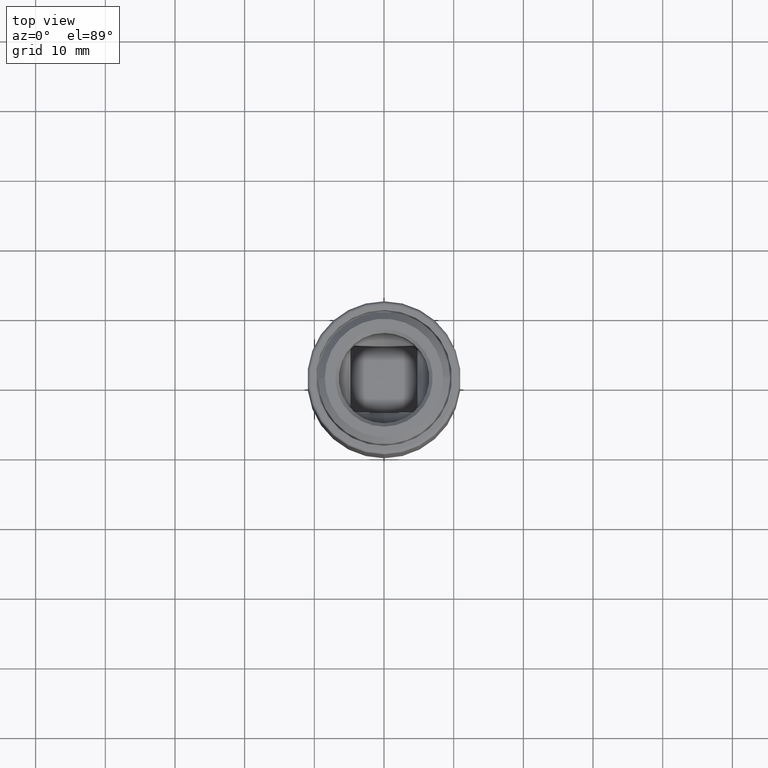
[diagram: clean part render]
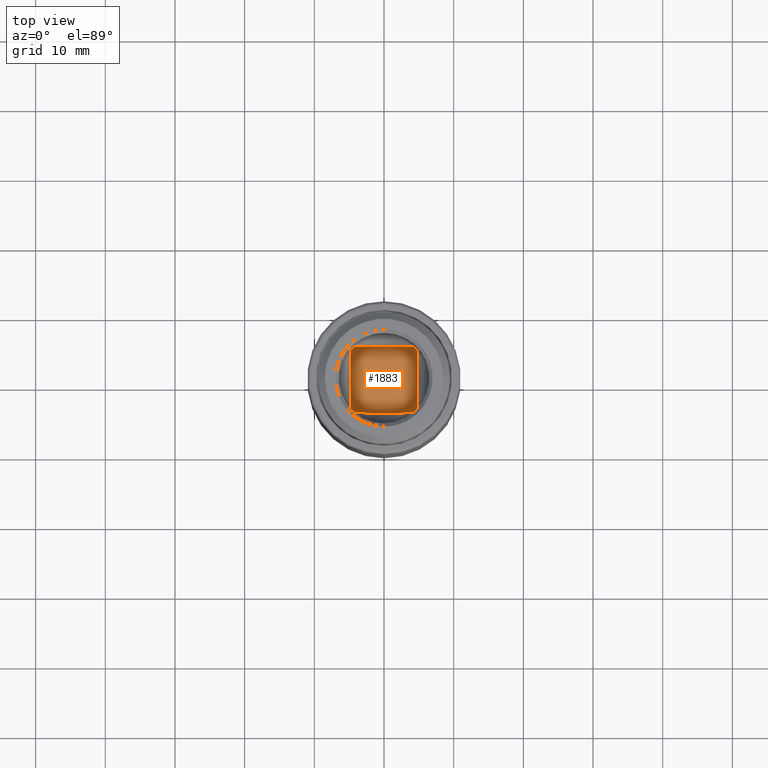
[diagram: same view with one face highlighted and labeled with its STEP entity id]
A machine part, top view. The second image highlights one B-rep face of the part: STEP entity #1883.
In plain terms, the highlighted planar face has unit normal (0, 0, 1).
Its self-contained STEP definition (entity closure, byte-faithful):
#569=CARTESIAN_POINT('',(0.E0,0.E0,2.2E1));
#570=DIRECTION('',(0.E0,0.E0,-1.E0));
#571=DIRECTION('',(7.461240310078E-1,-6.658069767979E-1,0.E0));
#572=AXIS2_PLACEMENT_3D('',#569,#570,#571);
#577=DIRECTION('',(0.E0,-1.E0,0.E0));
#578=VECTOR('',#577,8.588910000693E0);
#579=CARTESIAN_POINT('',(4.8125E0,4.294455000346E0,2.2E1));
#580=LINE('',#579,#578);
#584=CARTESIAN_POINT('',(0.E0,0.E0,2.2E1));
#585=DIRECTION('',(0.E0,0.E0,-1.E0));
#586=DIRECTION('',(6.658069767979E-1,7.461240310078E-1,0.E0));
#587=AXIS2_PLACEMENT_3D('',#584,#585,#586);
#592=DIRECTION('',(1.E0,0.E0,0.E0));
#593=VECTOR('',#592,8.588910000693E0);
#594=CARTESIAN_POINT('',(-4.294455000346E0,4.8125E0,2.2E1));
#595=LINE('',#594,#593);
#599=CARTESIAN_POINT('',(0.E0,0.E0,2.2E1));
#600=DIRECTION('',(0.E0,0.E0,-1.E0));
#601=DIRECTION('',(-7.461240310078E-1,6.658069767979E-1,0.E0));
#602=AXIS2_PLACEMENT_3D('',#599,#600,#601);
#607=DIRECTION('',(0.E0,1.E0,0.E0));
#608=VECTOR('',#607,8.588910000693E0);
#609=CARTESIAN_POINT('',(-4.8125E0,-4.294455000346E0,2.2E1));
#610=LINE('',#609,#608);
#614=CARTESIAN_POINT('',(0.E0,0.E0,2.2E1));
#615=DIRECTION('',(0.E0,0.E0,-1.E0));
#616=DIRECTION('',(-6.658069767979E-1,-7.461240310078E-1,0.E0));
#617=AXIS2_PLACEMENT_3D('',#614,#615,#616);
#622=DIRECTION('',(-1.E0,0.E0,0.E0));
#623=VECTOR('',#622,8.588910000693E0);
#624=CARTESIAN_POINT('',(4.294455000346E0,-4.8125E0,2.2E1));
#625=LINE('',#624,#623);
#1369=CARTESIAN_POINT('',(4.294455000346E0,-4.8125E0,2.2E1));
#1370=CARTESIAN_POINT('',(-4.294455000346E0,-4.8125E0,2.2E1));
#1371=VERTEX_POINT('',#1369);
#1372=VERTEX_POINT('',#1370);
#1373=CARTESIAN_POINT('',(-4.8125E0,-4.294455000346E0,2.2E1));
#1374=CARTESIAN_POINT('',(-4.8125E0,4.294455000346E0,2.2E1));
#1375=VERTEX_POINT('',#1373);
#1376=VERTEX_POINT('',#1374);
#1377=CARTESIAN_POINT('',(-4.294455000346E0,4.8125E0,2.2E1));
#1378=CARTESIAN_POINT('',(4.294455000346E0,4.8125E0,2.2E1));
#1379=VERTEX_POINT('',#1377);
#1380=VERTEX_POINT('',#1378);
#1381=CARTESIAN_POINT('',(4.8125E0,4.294455000346E0,2.2E1));
#1382=CARTESIAN_POINT('',(4.8125E0,-4.294455000346E0,2.2E1));
#1383=VERTEX_POINT('',#1381);
#1384=VERTEX_POINT('',#1382);
#1864=CARTESIAN_POINT('',(0.E0,0.E0,2.2E1));
#1865=DIRECTION('',(0.E0,0.E0,-1.E0));
#1866=DIRECTION('',(0.E0,1.E0,0.E0));
#1867=AXIS2_PLACEMENT_3D('',#1864,#1865,#1866);
#1868=PLANE('',#1867);
#1869=ORIENTED_EDGE('',*,*,#1858,.F.);
#1870=ORIENTED_EDGE('',*,*,#1759,.F.);
#1872=ORIENTED_EDGE('',*,*,#1871,.F.);
#1874=ORIENTED_EDGE('',*,*,#1873,.F.);
#1876=ORIENTED_EDGE('',*,*,#1875,.F.);
#1877=ORIENTED_EDGE('',*,*,#1805,.F.);
#1879=ORIENTED_EDGE('',*,*,#1878,.F.);
#1880=ORIENTED_EDGE('',*,*,#1844,.F.);
#1881=EDGE_LOOP('',(#1869,#1870,#1872,#1874,#1876,#1877,#1879,#1880));
#1882=FACE_OUTER_BOUND('',#1881,.F.);
#1883=ADVANCED_FACE('',(#1882),#1868,.T.);
#573=CIRCLE('',#572,6.45E0);
#588=CIRCLE('',#587,6.45E0);
#603=CIRCLE('',#602,6.45E0);
#618=CIRCLE('',#617,6.45E0);
#1759=EDGE_CURVE('',#1383,#1384,#580,.T.);
#1805=EDGE_CURVE('',#1375,#1376,#610,.T.);
#1844=EDGE_CURVE('',#1371,#1372,#625,.T.);
#1858=EDGE_CURVE('',#1384,#1371,#573,.T.);
#1871=EDGE_CURVE('',#1380,#1383,#588,.T.);
#1873=EDGE_CURVE('',#1379,#1380,#595,.T.);
#1875=EDGE_CURVE('',#1376,#1379,#603,.T.);
#1878=EDGE_CURVE('',#1372,#1375,#618,.T.);